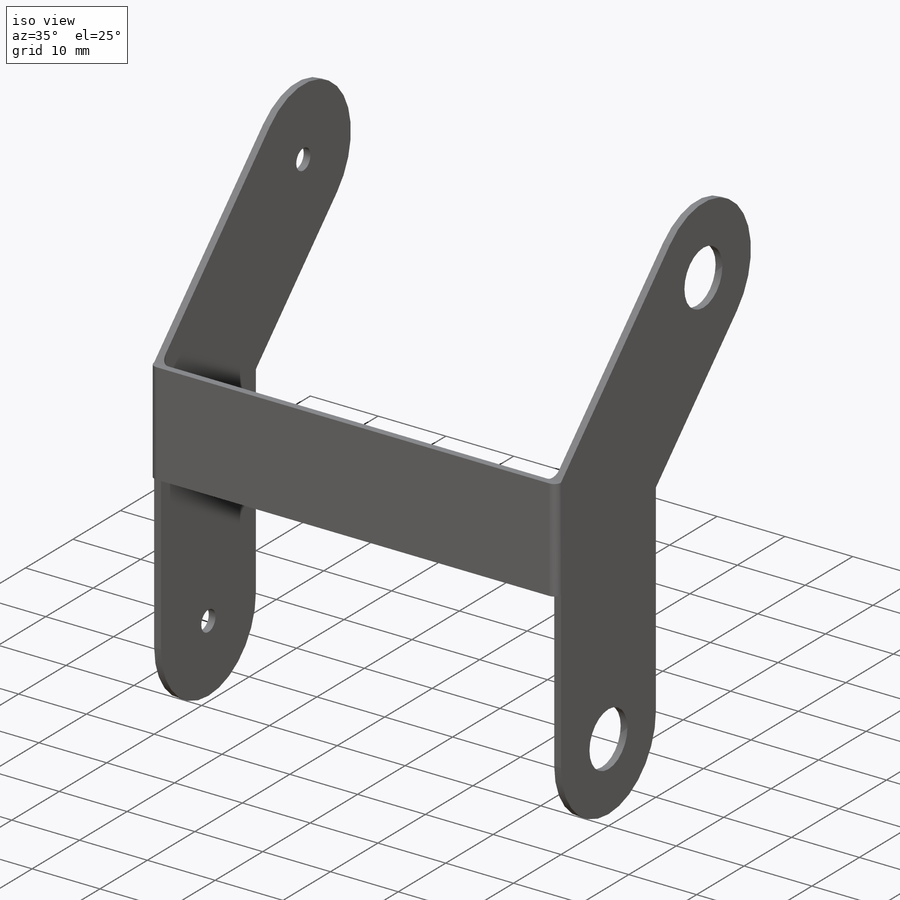
[diagram: iso view]
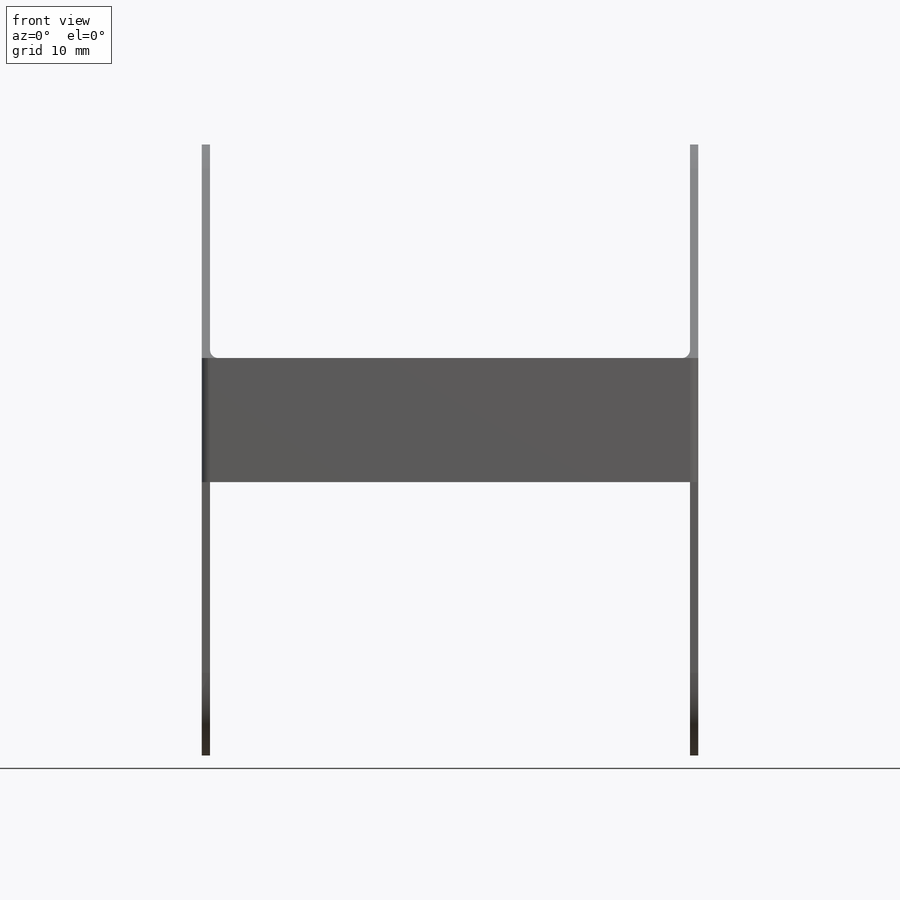
[diagram: front view]
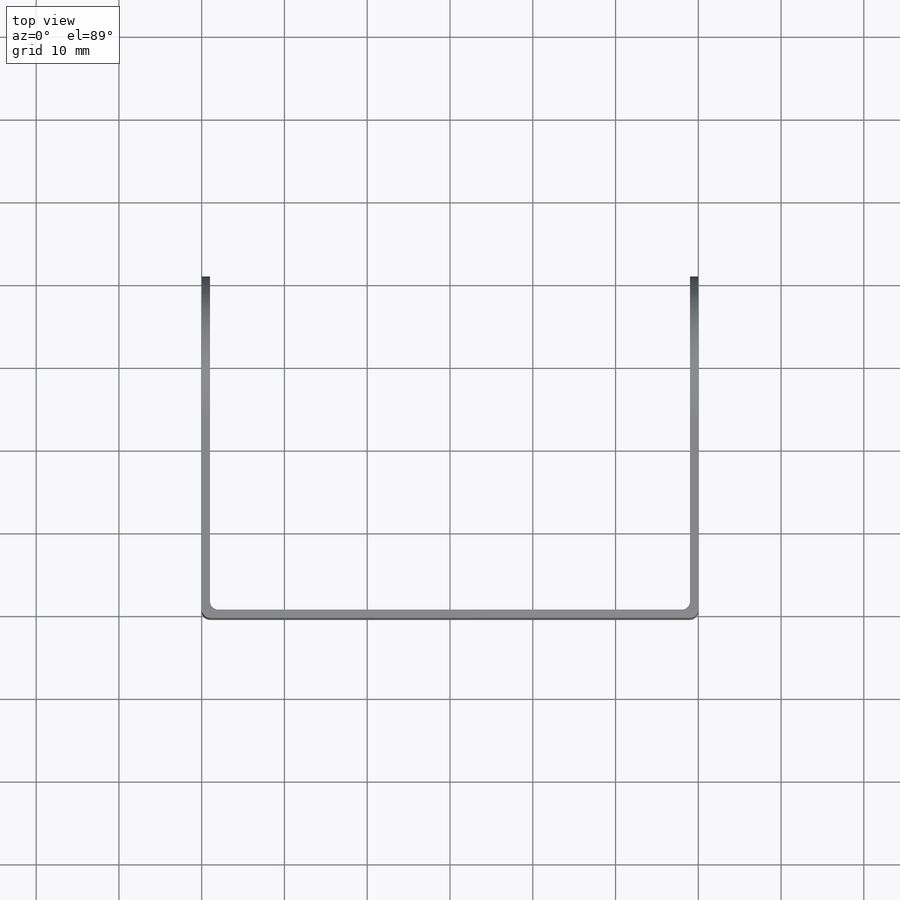
[diagram: top view]
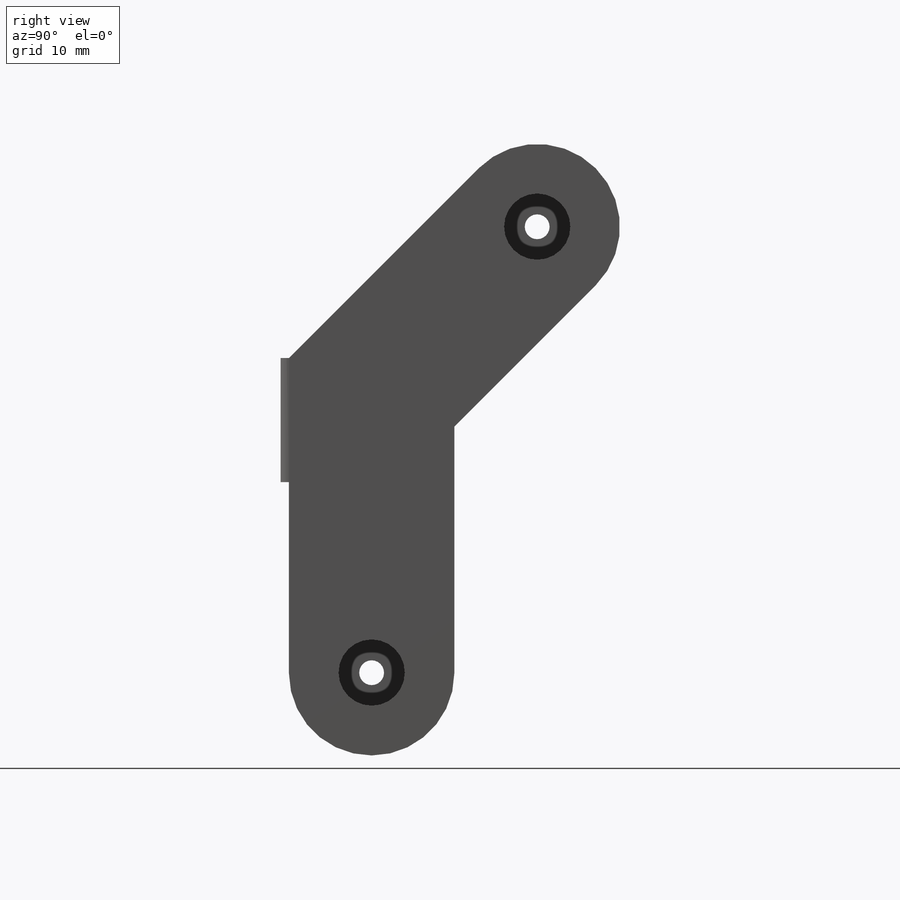
[diagram: right view]
SOLIDWORKS PART (.sldprt)
format: sldprt  version: not decoded by parser v0  size: 216,064 bytes
history: native  units: mm
features: sketch x3, extrude x2, material x1, plane x1, mirror x1, fillet x1, cut_extrude x1 (+13 scaffold rows collapsed)
feature tree (23):
  scaffold x13  (default folders/planes/origin — collapsed)
  material  "Material <not specified>"
  sketch  "Sketch1"  dims[c1.D1=~4.679284mm c1.D2=10.0mm c1.D3=10.0mm c1.D6=3.0mm c1.D7=3.0mm c2.D1=~10.957869mm c3.D1=135.0deg c3.D4=32.426mm c3.D5=38.019mm c3.D8=10.0mm c4.D8=~9.269776deg]
  extrude  "Boss-Extrude1"  Depth=1mm
  sketch  "Sketch2"  dims[D1=15.0mm D2=1.0mm]
  extrude  "Boss-Extrude2"  Depth=30mm
  plane  "Plane1"
  mirror  "Mirror2"
  fillet  "Fillet1"  Radius=1mm
  sketch  "Sketch3"  dims[D1=8.0mm D2=8.0mm]
  cut_extrude  "Cut-Extrude1"  [1 undecoded]
decode coverage: 6 of 8 modeling features carry decoded parameters
note: ~ marks probable driven/reference dimensions
note: 1 parameter value undecoded
note: suppression state not decoded; provenance and decode notes live in map.json
